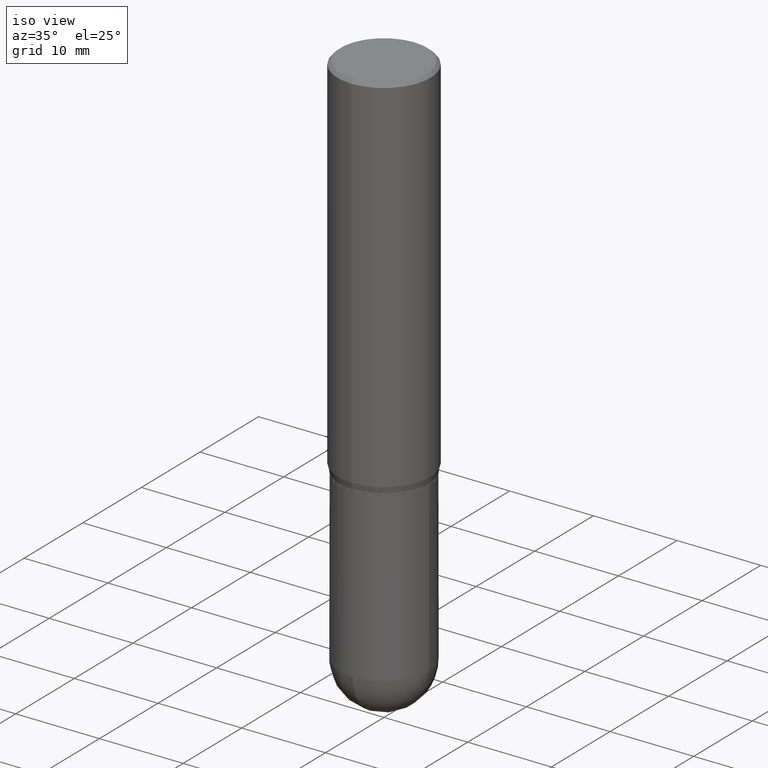
[diagram: clean part render]
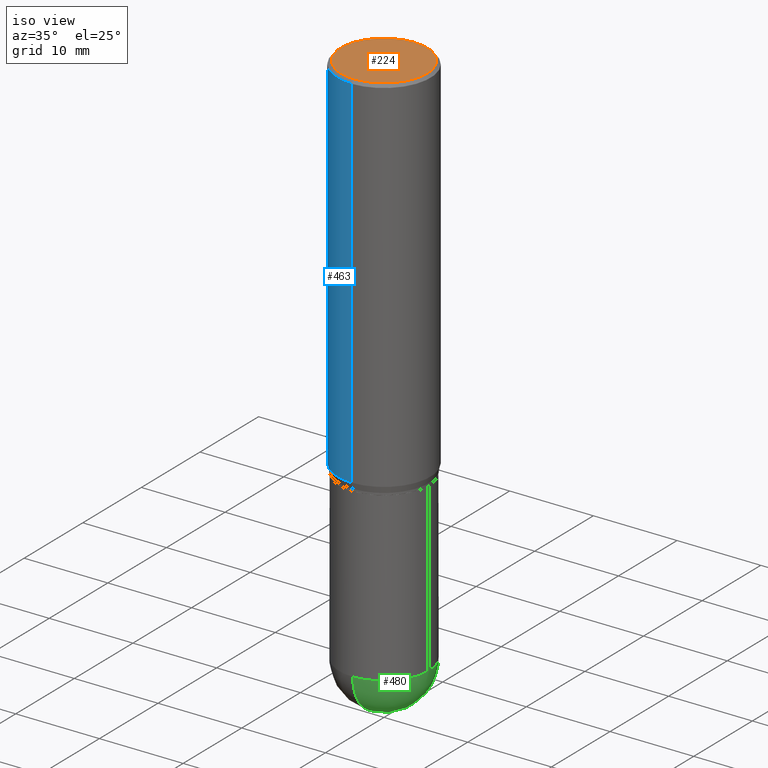
[diagram: same view with three faces highlighted in distinct colors, each labeled with its STEP entity id]
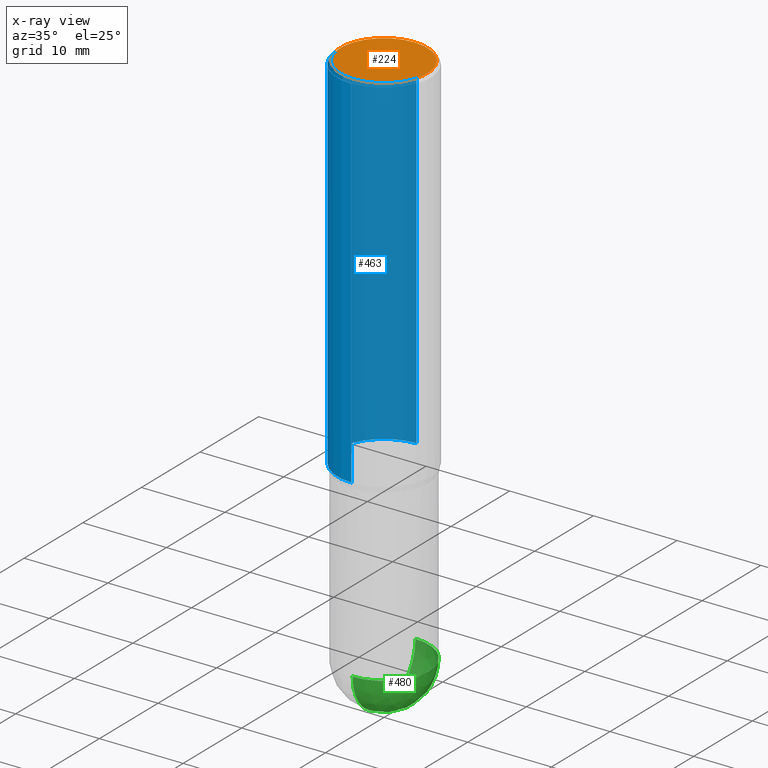
[diagram: x-ray of the same camera — body ghosted, the three highlighted faces saturated]
A machine part, iso view with three faces highlighted in distinct colors.
The next image is the same camera in x-ray (body ghosted, the three faces saturated) — at least one of them is partly hidden behind the body in this view.
Their STEP definitions:

[orange] entity #224 — the highlighted planar face has unit normal (0, -0, -1).
#43 = EDGE_CURVE ( 'NONE', #419, #381, #274, .T. ) ;
#113 = AXIS2_PLACEMENT_3D ( 'NONE', #119, #470, #308 ) ;
#115 = ORIENTED_EDGE ( 'NONE', *, *, #43, .T. ) ;
#119 = CARTESIAN_POINT ( 'NONE',  ( 5.702671946011534855E-45, -8.142132392621577057E-31, -2.331966669962461772E-16 ) ) ;
#125 = CARTESIAN_POINT ( 'NONE',  ( 1.422778645578576487E-15, 0.2037499999999999867, -8.279976413721720471E-16 ) ) ;
#131 = CARTESIAN_POINT ( 'NONE',  ( -1.449280202029235538E-15, -0.2037499999999999867, 4.782026408778026828E-16 ) ) ;
#168 = AXIS2_PLACEMENT_3D ( 'NONE', #200, #235, #171 ) ;
#171 = DIRECTION ( 'NONE',  ( -6.982962677686265133E-15, -1.000000000000000000, 3.491530345394105141E-15 ) ) ;
#188 = CIRCLE ( 'NONE', #113, 0.2037499999999999867 ) ;
#196 = EDGE_LOOP ( 'NONE', ( #115, #218 ) ) ;
#200 = CARTESIAN_POINT ( 'NONE',  ( 5.702671946011534855E-45, -8.142132392621577057E-31, -2.331966669962461772E-16 ) ) ;
#218 = ORIENTED_EDGE ( 'NONE', *, *, #257, .T. ) ;
#224 = ADVANCED_FACE ( 'NONE', ( #396 ), #429, .F. ) ;
#235 = DIRECTION ( 'NONE',  ( -2.445434585093504913E-29, 3.491530345394105536E-15, 1.000000000000000000 ) ) ;
#237 = DIRECTION ( 'NONE',  ( 2.445434585093504633E-29, -3.491530345394105536E-15, -1.000000000000000000 ) ) ;
#257 = EDGE_CURVE ( 'NONE', #381, #419, #188, .T. ) ;
#274 = CIRCLE ( 'NONE', #168, 0.2037499999999999867 ) ;
#308 = DIRECTION ( 'NONE',  ( -6.982962677686265133E-15, -1.000000000000000000, 3.491530345394105141E-15 ) ) ;
#327 = CARTESIAN_POINT ( 'NONE',  ( 1.475150865661223764E-15, 0.2037499999999999867, -9.445959748702948399E-16 ) ) ;
#357 = DIRECTION ( 'NONE',  ( 6.982962677686265922E-15, 1.000000000000000000, -3.491530345394105536E-15 ) ) ;
#381 = VERTEX_POINT ( 'NONE', #131 ) ;
#396 = FACE_OUTER_BOUND ( 'NONE', #196, .T. ) ;
#407 = AXIS2_PLACEMENT_3D ( 'NONE', #125, #237, #357 ) ;
#419 = VERTEX_POINT ( 'NONE', #327 ) ;
#429 = PLANE ( 'NONE',  #407 ) ;
#470 = DIRECTION ( 'NONE',  ( -2.445434585093504913E-29, 3.491530345394105536E-15, 1.000000000000000000 ) ) ;

[blue] entity #463 — the highlighted cylindrical surface (partial cylindrical patch) has radius 5.5562 mm, axis along (-0, 0, 1).
#5 = AXIS2_PLACEMENT_3D ( 'NONE', #495, #176, #96 ) ;
#34 = CARTESIAN_POINT ( 'NONE',  ( -1.527523085743870054E-15, -0.2187500000000000555, -0.01499999999999946862 ) ) ;
#52 = CARTESIAN_POINT ( 'NONE',  ( 0.000000000000000000, 0.000000000000000000, 0.000000000000000000 ) ) ;
#79 = DIRECTION ( 'NONE',  ( -6.982962677686265133E-15, -1.000000000000000000, 3.492862791899308071E-15 ) ) ;
#87 = DIRECTION ( 'NONE',  ( -2.445434585093504913E-29, 3.491530345394105536E-15, 1.000000000000000000 ) ) ;
#91 = VERTEX_POINT ( 'NONE', #438 ) ;
#96 = DIRECTION ( 'NONE',  ( -6.982962677686265133E-15, -1.000000000000000000, 3.746534391310989557E-15 ) ) ;
#99 = CARTESIAN_POINT ( 'NONE',  ( -1.527523085743828442E-15, -0.2187500000000059397, -1.710890003700962003 ) ) ;
#120 = ORIENTED_EDGE ( 'NONE', *, *, #417, .T. ) ;
#121 = LINE ( 'NONE', #273, #229 ) ;
#124 = AXIS2_PLACEMENT_3D ( 'NONE', #474, #432, #79 ) ;
#134 = FACE_OUTER_BOUND ( 'NONE', #294, .T. ) ;
#139 = ORIENTED_EDGE ( 'NONE', *, *, #213, .T. ) ;
#161 = CARTESIAN_POINT ( 'NONE',  ( 1.554312234475260769E-15, 0.2187499999999940603, -1.710890003700963558 ) ) ;
#176 = DIRECTION ( 'NONE',  ( -2.445434585093504913E-29, 3.491530345394105536E-15, 1.000000000000000000 ) ) ;
#183 = ORIENTED_EDGE ( 'NONE', *, *, #382, .F. ) ;
#213 = EDGE_CURVE ( 'NONE', #493, #499, #121, .T. ) ;
#229 = VECTOR ( 'NONE', #352, 39.37007874015748143 ) ;
#239 = EDGE_CURVE ( 'NONE', #91, #499, #264, .T. ) ;
#240 = AXIS2_PLACEMENT_3D ( 'NONE', #52, #87, #332 ) ;
#264 = CIRCLE ( 'NONE', #124, 0.2187500000000000000 ) ;
#266 = VERTEX_POINT ( 'NONE', #161 ) ;
#273 = CARTESIAN_POINT ( 'NONE',  ( -1.527523085743870449E-15, -0.2187500000000000000, 7.637722630549605613E-16 ) ) ;
#293 = LINE ( 'NONE', #406, #317 ) ;
#294 = EDGE_LOOP ( 'NONE', ( #183, #120, #139, #426 ) ) ;
#317 = VECTOR ( 'NONE', #374, 39.37007874015748143 ) ;
#332 = DIRECTION ( 'NONE',  ( -6.982962677686265133E-15, -1.000000000000000000, 3.491530345394105536E-15 ) ) ;
#352 = DIRECTION ( 'NONE',  ( -2.445434585093504633E-29, 3.491530345394105536E-15, 1.000000000000000000 ) ) ;
#360 = CIRCLE ( 'NONE', #5, 0.2187500000000000000 ) ;
#374 = DIRECTION ( 'NONE',  ( -2.445434585093504633E-29, 3.491530345394105536E-15, 1.000000000000000000 ) ) ;
#382 = EDGE_CURVE ( 'NONE', #266, #91, #293, .T. ) ;
#406 = CARTESIAN_POINT ( 'NONE',  ( 1.554312234475218762E-15, 0.2187500000000000000, -7.637722630549605613E-16 ) ) ;
#417 = EDGE_CURVE ( 'NONE', #266, #493, #360, .T. ) ;
#426 = ORIENTED_EDGE ( 'NONE', *, *, #239, .F. ) ;
#432 = DIRECTION ( 'NONE',  ( -2.445434585093504913E-29, 3.491530345394105536E-15, 1.000000000000000000 ) ) ;
#438 = CARTESIAN_POINT ( 'NONE',  ( 1.554312234475260966E-15, 0.2187499999999999167, -0.01500000000000099691 ) ) ;
#443 = CYLINDRICAL_SURFACE ( 'NONE', #240, 0.2187500000000000000 ) ;
#463 = ADVANCED_FACE ( 'NONE', ( #134 ), #443, .T. ) ;
#474 = CARTESIAN_POINT ( 'NONE',  ( 3.668151877640314350E-31, -5.237295518091239778E-17, -0.01500000000000023190 ) ) ;
#493 = VERTEX_POINT ( 'NONE', #99 ) ;
#495 = CARTESIAN_POINT ( 'NONE',  ( 4.183869586341088667E-29, -5.973624365553345919E-15, -1.710890003700962669 ) ) ;
#499 = VERTEX_POINT ( 'NONE', #34 ) ;

[green] entity #480 — the highlighted spherical surface has radius 5.3581 mm.
#7 = EDGE_CURVE ( 'NONE', #53, #145, #33, .T. ) ;
#8 = CARTESIAN_POINT ( 'NONE',  ( 6.209167572344372023E-29, -8.865045693389689499E-15, -2.539050000000000473 ) ) ;
#33 = CIRCLE ( 'NONE', #435, 0.2109500000000000541 ) ;
#53 = VERTEX_POINT ( 'NONE', #434 ) ;
#63 = AXIS2_PLACEMENT_3D ( 'NONE', #379, #278, #209 ) ;
#72 = ORIENTED_EDGE ( 'NONE', *, *, #408, .F. ) ;
#80 = EDGE_CURVE ( 'NONE', #145, #110, #160, .T. ) ;
#109 = DIRECTION ( 'NONE',  ( 6.982962677686265133E-15, 1.000000000000000000, -2.590043132177541277E-15 ) ) ;
#110 = VERTEX_POINT ( 'NONE', #403 ) ;
#114 = CARTESIAN_POINT ( 'NONE',  ( 0.2109500000000000541, -8.960624995040515044E-15, -2.539050000000000473 ) ) ;
#130 = EDGE_CURVE ( 'NONE', #338, #110, #442, .T. ) ;
#145 = VERTEX_POINT ( 'NONE', #114 ) ;
#157 = CIRCLE ( 'NONE', #468, 0.2109500000000001096 ) ;
#160 = CIRCLE ( 'NONE', #329, 0.2109500000000000541 ) ;
#162 = DIRECTION ( 'NONE',  ( -2.445468806185136597E-29, 3.491481338843145583E-15, 1.000000000000000000 ) ) ;
#182 = CARTESIAN_POINT ( 'NONE',  ( 6.191127839474132236E-29, -8.890879617617701491E-15, -2.539049999999999585 ) ) ;
#194 = ORIENTED_EDGE ( 'NONE', *, *, #80, .F. ) ;
#209 = DIRECTION ( 'NONE',  ( 6.982962677686265922E-15, 1.000000000000000000, 0.000000000000000000 ) ) ;
#214 = DIRECTION ( 'NONE',  ( -1.000000000000000000, 7.105427357601001070E-15, -4.926315508542082329E-29 ) ) ;
#219 = CARTESIAN_POINT ( 'NONE',  ( 6.716019350574006308E-29, -9.614490643932656644E-15, -2.750000000000000000 ) ) ;
#230 = ORIENTED_EDGE ( 'NONE', *, *, #7, .F. ) ;
#259 = DIRECTION ( 'NONE',  ( 1.000000000000000000, -6.982962677686265133E-15, 0.000000000000000000 ) ) ;
#265 = CARTESIAN_POINT ( 'NONE',  ( 6.191127839474132236E-29, -8.890879617617701491E-15, -2.539049999999999585 ) ) ;
#278 = DIRECTION ( 'NONE',  ( 1.000000000000000000, -6.982962677686265922E-15, 4.883557194083112340E-29 ) ) ;
#302 = DIRECTION ( 'NONE',  ( -2.445468806185136597E-29, 3.491481338843145583E-15, 1.000000000000000000 ) ) ;
#304 = SPHERICAL_SURFACE ( 'NONE', #494, 0.2109500000000001096 ) ;
#329 = AXIS2_PLACEMENT_3D ( 'NONE', #8, #162, #401 ) ;
#336 = DIRECTION ( 'NONE',  ( -7.105427357601001070E-15, -1.000000000000000000, 0.000000000000000000 ) ) ;
#338 = VERTEX_POINT ( 'NONE', #219 ) ;
#345 = CARTESIAN_POINT ( 'NONE',  ( 6.209167572344372023E-29, -8.865045693389689499E-15, -2.539050000000000473 ) ) ;
#371 = EDGE_LOOP ( 'NONE', ( #72, #428, #194, #230 ) ) ;
#379 = CARTESIAN_POINT ( 'NONE',  ( 6.191127839474132236E-29, -8.890879617617701491E-15, -2.539049999999999585 ) ) ;
#384 = DIRECTION ( 'NONE',  ( -1.000000000000000000, 6.982962677686265133E-15, -4.883557194083112340E-29 ) ) ;
#401 = DIRECTION ( 'NONE',  ( 1.000000000000000000, -6.982962677686265133E-15, 0.000000000000000000 ) ) ;
#403 = CARTESIAN_POINT ( 'NONE',  ( 1.473055976857980082E-15, 0.2109499999999912001, -2.539050000000000917 ) ) ;
#408 = EDGE_CURVE ( 'NONE', #338, #53, #157, .T. ) ;
#428 = ORIENTED_EDGE ( 'NONE', *, *, #130, .T. ) ;
#434 = CARTESIAN_POINT ( 'NONE',  ( -1.498889901085869604E-15, -0.2109500000000089637, -2.539049999999999585 ) ) ;
#435 = AXIS2_PLACEMENT_3D ( 'NONE', #345, #302, #259 ) ;
#442 = CIRCLE ( 'NONE', #63, 0.2109500000000001096 ) ;
#464 = FACE_OUTER_BOUND ( 'NONE', #371, .T. ) ;
#468 = AXIS2_PLACEMENT_3D ( 'NONE', #182, #214, #336 ) ;
#480 = ADVANCED_FACE ( 'NONE', ( #464 ), #304, .T. ) ;
#494 = AXIS2_PLACEMENT_3D ( 'NONE', #265, #384, #109 ) ;